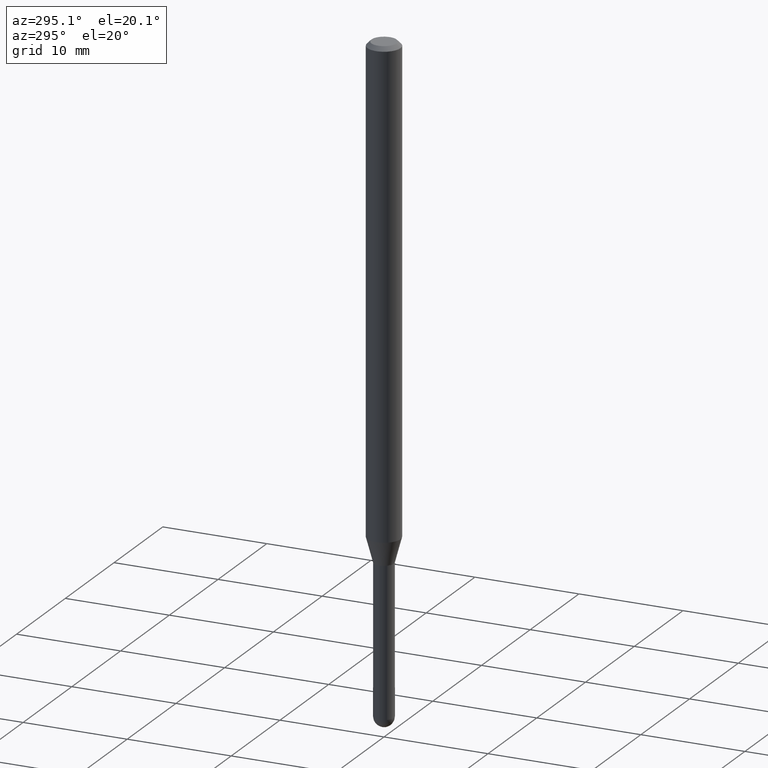
[diagram: clean part render]
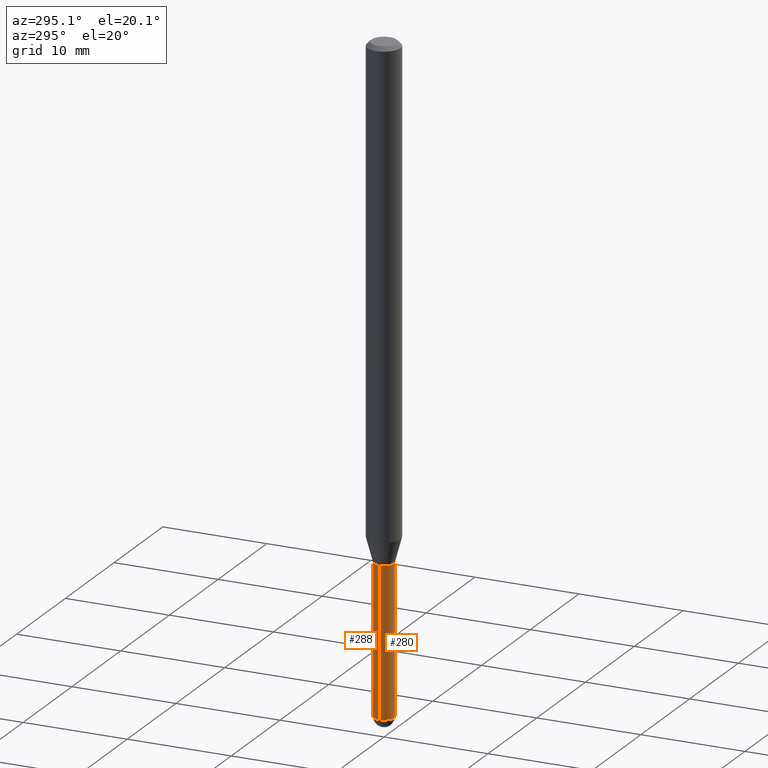
[diagram: same view with one multi-face feature highlighted, each face labeled with its STEP entity id]
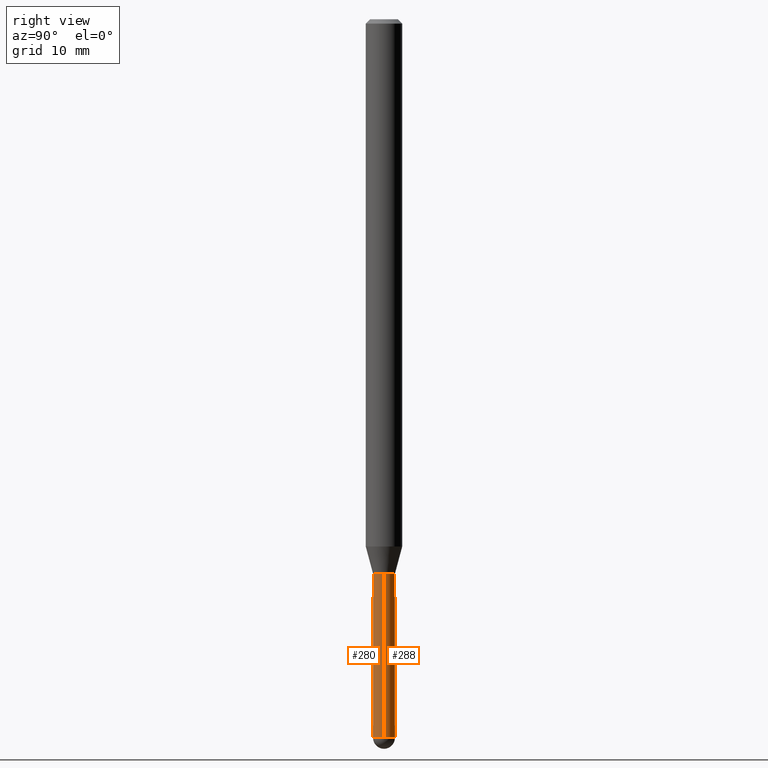
[diagram: same view with one multi-face feature highlighted, each face labeled with its STEP entity id]
A machine part, auxiliary view. The highlighted faces form ONE feature: a constant-radius fillet chain: 2 tangent blend faces with common blend radius 0.9525 mm. The faces share edges in the B-rep.
A second angle (right view) of the same feature is appended — it is thin or edge-on in the first view.
Their STEP definitions:
[1] entity #280 (Cylinder):
#6 = DIRECTION ( 'NONE',  ( -2.445468806185136597E-29, 3.491481338843145583E-15, 1.000000000000000000 ) ) ;
#12 = AXIS2_PLACEMENT_3D ( 'NONE', #317, #6, #507 ) ;
#20 = FACE_OUTER_BOUND ( 'NONE', #453, .T. ) ;
#50 = CARTESIAN_POINT ( 'NONE',  ( 6.021966935230899318E-29, -8.597772796901246653E-15, -2.462500000000000355 ) ) ;
#57 = CIRCLE ( 'NONE', #125, 0.03749999999999999861 ) ;
#62 = DIRECTION ( 'NONE',  ( 1.000000000000000000, -6.982962677686266711E-15, 4.876176775795935793E-29 ) ) ;
#88 = DIRECTION ( 'NONE',  ( -2.445468806185136597E-29, 3.491481338843145583E-15, 1.000000000000000000 ) ) ;
#100 = ORIENTED_EDGE ( 'NONE', *, *, #232, .F. ) ;
#119 = CARTESIAN_POINT ( 'NONE',  ( -0.03749999999999999861, 2.664535259100375598E-16, -1.844600658845589808E-30 ) ) ;
#123 = ORIENTED_EDGE ( 'NONE', *, *, #165, .T. ) ;
#125 = AXIS2_PLACEMENT_3D ( 'NONE', #50, #375, #168 ) ;
#132 = DIRECTION ( 'NONE',  ( 1.000000000000000000, -6.982962677686268288E-15, 0.000000000000000000 ) ) ;
#157 = VERTEX_POINT ( 'NONE', #180 ) ;
#165 = EDGE_CURVE ( 'NONE', #421, #157, #512, .T. ) ;
#168 = DIRECTION ( 'NONE',  ( 1.000000000000000000, -6.982962677686242256E-15, 0.000000000000000000 ) ) ;
#170 = VECTOR ( 'NONE', #233, 39.37007874015748143 ) ;
#180 = CARTESIAN_POINT ( 'NONE',  ( 0.03749999999999999861, -6.895675644215212043E-15, -1.900000000000000133 ) ) ;
#188 = AXIS2_PLACEMENT_3D ( 'NONE', #255, #410, #62 ) ;
#205 = CARTESIAN_POINT ( 'NONE',  ( -0.03749999999999999861, -7.349340144441574435E-15, -1.900000000000000133 ) ) ;
#207 = ORIENTED_EDGE ( 'NONE', *, *, #327, .T. ) ;
#220 = VECTOR ( 'NONE', #510, 39.37007874015748143 ) ;
#225 = ORIENTED_EDGE ( 'NONE', *, *, #443, .F. ) ;
#227 = EDGE_CURVE ( 'NONE', #382, #411, #319, .T. ) ;
#232 = EDGE_CURVE ( 'NONE', #508, #157, #439, .T. ) ;
#233 = DIRECTION ( 'NONE',  ( -2.445468806185136877E-29, 3.491481338843145188E-15, 1.000000000000000000 ) ) ;
#255 = CARTESIAN_POINT ( 'NONE',  ( 0.000000000000000000, 0.000000000000000000, 0.000000000000000000 ) ) ;
#260 = CARTESIAN_POINT ( 'NONE',  ( -0.03749999999999999861, -7.349340144441574435E-15, -2.462500000000000355 ) ) ;
#277 = LINE ( 'NONE', #119, #170 ) ;
#280 = ADVANCED_FACE ( 'NONE', ( #20 ), #465, .T. ) ;
#317 = CARTESIAN_POINT ( 'NONE',  ( 6.021966935230899318E-29, -8.597772796901246653E-15, -2.462500000000000355 ) ) ;
#319 = CIRCLE ( 'NONE', #12, 0.03749999999999999861 ) ;
#325 = CARTESIAN_POINT ( 'NONE',  ( -2.664535259099770148E-16, -0.03750000000000855427, -2.462500000000000355 ) ) ;
#327 = EDGE_CURVE ( 'NONE', #411, #421, #57, .T. ) ;
#346 = CARTESIAN_POINT ( 'NONE',  ( 0.03749999999999999861, -2.618611004132350016E-16, 1.828566290923475922E-30 ) ) ;
#375 = DIRECTION ( 'NONE',  ( -2.445468806185136597E-29, 3.491481338843145583E-15, 1.000000000000000000 ) ) ;
#382 = VERTEX_POINT ( 'NONE', #260 ) ;
#383 = CARTESIAN_POINT ( 'NONE',  ( 4.646390731751759982E-29, -6.633814543801977041E-15, -1.900000000000000133 ) ) ;
#410 = DIRECTION ( 'NONE',  ( -2.445468806185136597E-29, 3.491481338843145583E-15, 1.000000000000000000 ) ) ;
#411 = VERTEX_POINT ( 'NONE', #325 ) ;
#421 = VERTEX_POINT ( 'NONE', #445 ) ;
#423 = ORIENTED_EDGE ( 'NONE', *, *, #227, .T. ) ;
#427 = AXIS2_PLACEMENT_3D ( 'NONE', #383, #88, #132 ) ;
#439 = CIRCLE ( 'NONE', #427, 0.03749999999999999861 ) ;
#443 = EDGE_CURVE ( 'NONE', #382, #508, #277, .T. ) ;
#445 = CARTESIAN_POINT ( 'NONE',  ( 0.03749999999999999861, -7.877654770764846060E-15, -2.462500000000000355 ) ) ;
#453 = EDGE_LOOP ( 'NONE', ( #225, #423, #207, #123, #100 ) ) ;
#465 = CYLINDRICAL_SURFACE ( 'NONE', #188, 0.03749999999999999861 ) ;
#507 = DIRECTION ( 'NONE',  ( 1.000000000000000000, -6.982962677686242256E-15, 0.000000000000000000 ) ) ;
#508 = VERTEX_POINT ( 'NONE', #205 ) ;
#510 = DIRECTION ( 'NONE',  ( -2.445468806185136877E-29, 3.491481338843145188E-15, 1.000000000000000000 ) ) ;
#512 = LINE ( 'NONE', #346, #220 ) ;
[2] entity #288 (Cylinder):
#3 = EDGE_CURVE ( 'NONE', #157, #508, #367, .T. ) ;
#47 = CIRCLE ( 'NONE', #420, 0.03749999999999999861 ) ;
#49 = EDGE_LOOP ( 'NONE', ( #139, #447, #409, #491, #133 ) ) ;
#99 = DIRECTION ( 'NONE',  ( 1.000000000000000000, -6.982962677686266711E-15, 4.876176775795935793E-29 ) ) ;
#119 = CARTESIAN_POINT ( 'NONE',  ( -0.03749999999999999861, 2.664535259100375598E-16, -1.844600658845589808E-30 ) ) ;
#133 = ORIENTED_EDGE ( 'NONE', *, *, #206, .T. ) ;
#139 = ORIENTED_EDGE ( 'NONE', *, *, #470, .T. ) ;
#157 = VERTEX_POINT ( 'NONE', #180 ) ;
#165 = EDGE_CURVE ( 'NONE', #421, #157, #512, .T. ) ;
#166 = DIRECTION ( 'NONE',  ( 1.000000000000000000, -6.982962677686268288E-15, 0.000000000000000000 ) ) ;
#170 = VECTOR ( 'NONE', #233, 39.37007874015748143 ) ;
#180 = CARTESIAN_POINT ( 'NONE',  ( 0.03749999999999999861, -6.895675644215212043E-15, -1.900000000000000133 ) ) ;
#192 = DIRECTION ( 'NONE',  ( 1.000000000000000000, -6.982962677686242256E-15, 0.000000000000000000 ) ) ;
#205 = CARTESIAN_POINT ( 'NONE',  ( -0.03749999999999999861, -7.349340144441574435E-15, -1.900000000000000133 ) ) ;
#206 = EDGE_CURVE ( 'NONE', #421, #466, #487, .T. ) ;
#220 = VECTOR ( 'NONE', #510, 39.37007874015748143 ) ;
#229 = AXIS2_PLACEMENT_3D ( 'NONE', #380, #495, #99 ) ;
#233 = DIRECTION ( 'NONE',  ( -2.445468806185136877E-29, 3.491481338843145188E-15, 1.000000000000000000 ) ) ;
#248 = AXIS2_PLACEMENT_3D ( 'NONE', #310, #267, #192 ) ;
#260 = CARTESIAN_POINT ( 'NONE',  ( -0.03749999999999999861, -7.349340144441574435E-15, -2.462500000000000355 ) ) ;
#267 = DIRECTION ( 'NONE',  ( -2.445468806185136597E-29, 3.491481338843145583E-15, 1.000000000000000000 ) ) ;
#277 = LINE ( 'NONE', #119, #170 ) ;
#282 = AXIS2_PLACEMENT_3D ( 'NONE', #338, #328, #166 ) ;
#288 = ADVANCED_FACE ( 'NONE', ( #455 ), #426, .T. ) ;
#310 = CARTESIAN_POINT ( 'NONE',  ( 6.021966935230899318E-29, -8.597772796901246653E-15, -2.462500000000000355 ) ) ;
#328 = DIRECTION ( 'NONE',  ( -2.445468806185136597E-29, 3.491481338843145583E-15, 1.000000000000000000 ) ) ;
#338 = CARTESIAN_POINT ( 'NONE',  ( 4.646390731751759982E-29, -6.633814543801977041E-15, -1.900000000000000133 ) ) ;
#339 = CARTESIAN_POINT ( 'NONE',  ( 6.021966935230899318E-29, -8.597772796901246653E-15, -2.462500000000000355 ) ) ;
#346 = CARTESIAN_POINT ( 'NONE',  ( 0.03749999999999999861, -2.618611004132350016E-16, 1.828566290923475922E-30 ) ) ;
#367 = CIRCLE ( 'NONE', #282, 0.03749999999999999861 ) ;
#377 = DIRECTION ( 'NONE',  ( 1.000000000000000000, -6.982962677686242256E-15, 0.000000000000000000 ) ) ;
#380 = CARTESIAN_POINT ( 'NONE',  ( 0.000000000000000000, 0.000000000000000000, 0.000000000000000000 ) ) ;
#382 = VERTEX_POINT ( 'NONE', #260 ) ;
#409 = ORIENTED_EDGE ( 'NONE', *, *, #3, .F. ) ;
#420 = AXIS2_PLACEMENT_3D ( 'NONE', #339, #500, #377 ) ;
#421 = VERTEX_POINT ( 'NONE', #445 ) ;
#426 = CYLINDRICAL_SURFACE ( 'NONE', #229, 0.03749999999999999861 ) ;
#443 = EDGE_CURVE ( 'NONE', #382, #508, #277, .T. ) ;
#445 = CARTESIAN_POINT ( 'NONE',  ( 0.03749999999999999861, -7.877654770764846060E-15, -2.462500000000000355 ) ) ;
#447 = ORIENTED_EDGE ( 'NONE', *, *, #443, .T. ) ;
#455 = FACE_OUTER_BOUND ( 'NONE', #49, .T. ) ;
#459 = CARTESIAN_POINT ( 'NONE',  ( 2.618611004132948565E-16, 0.03749999999999135275, -2.462500000000000355 ) ) ;
#466 = VERTEX_POINT ( 'NONE', #459 ) ;
#470 = EDGE_CURVE ( 'NONE', #466, #382, #47, .T. ) ;
#487 = CIRCLE ( 'NONE', #248, 0.03749999999999999861 ) ;
#491 = ORIENTED_EDGE ( 'NONE', *, *, #165, .F. ) ;
#495 = DIRECTION ( 'NONE',  ( -2.445468806185136597E-29, 3.491481338843145583E-15, 1.000000000000000000 ) ) ;
#500 = DIRECTION ( 'NONE',  ( -2.445468806185136597E-29, 3.491481338843145583E-15, 1.000000000000000000 ) ) ;
#508 = VERTEX_POINT ( 'NONE', #205 ) ;
#510 = DIRECTION ( 'NONE',  ( -2.445468806185136877E-29, 3.491481338843145188E-15, 1.000000000000000000 ) ) ;
#512 = LINE ( 'NONE', #346, #220 ) ;